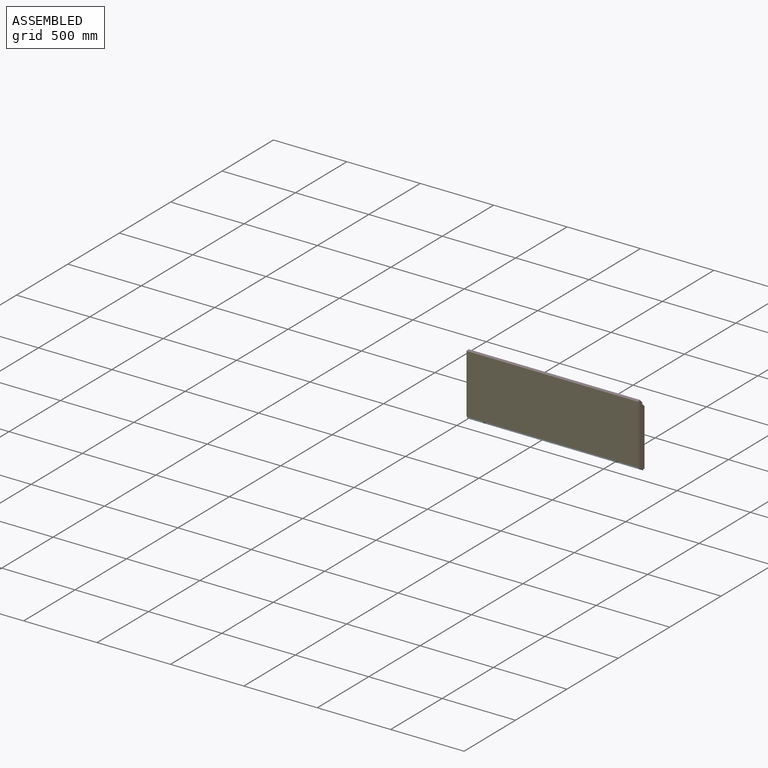
[diagram: assembled view]
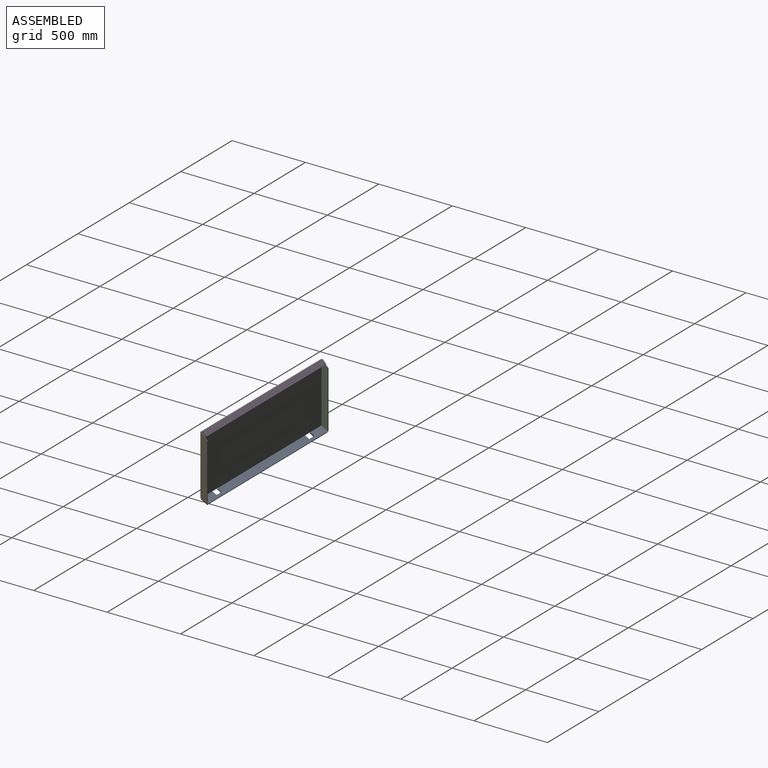
[diagram: assembled view, second angle]
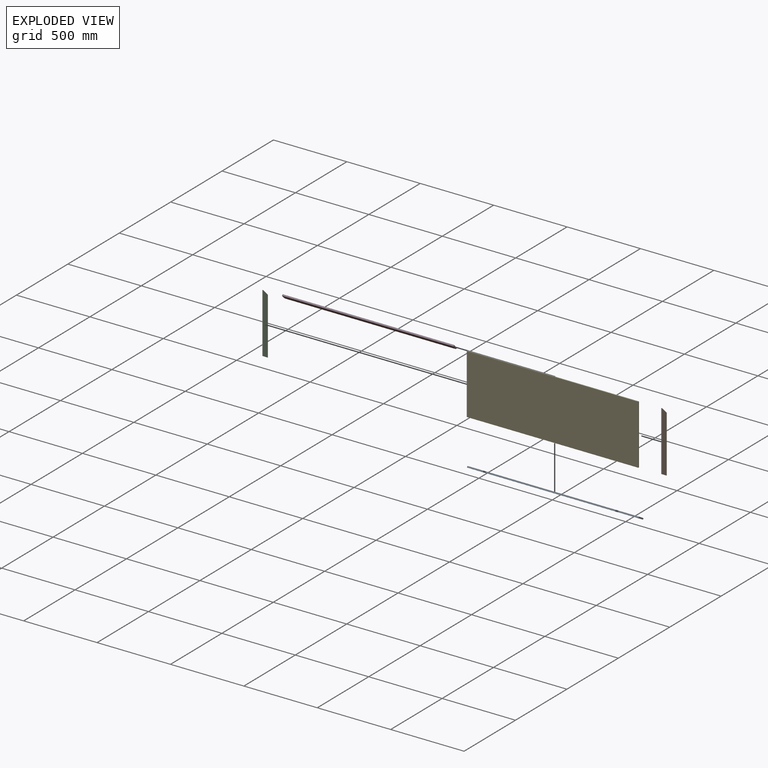
[diagram: exploded view]
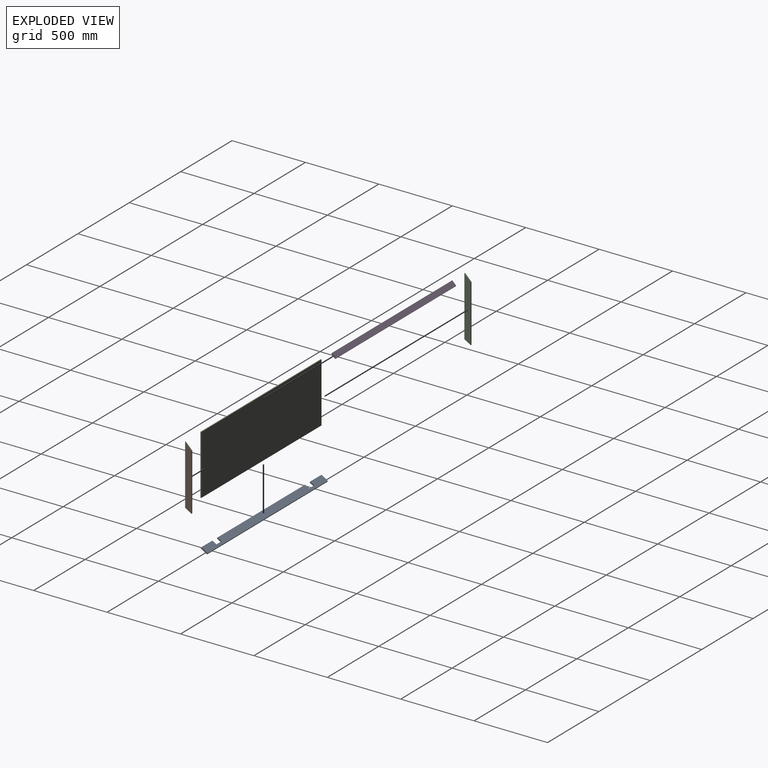
[diagram: exploded view, second angle]
ASSEMBLY  parts=5 mates=4
PART A: 14 faces, bbox 1168.4x48.8x33.6 mm
  f0: plane 850.9x8.25mm, normal (0,-0.87,0.5), area 8104.8mm2, adj f2,f3,f9,f13
  f1: plane 107.92x8.25mm, normal (0,-0.87,0.5), area 1027.9mm2, adj f2,f3,f7,f8
  f2: plane 1168.4x43.99mm, normal (0,0.5,0.87), area 56128.4mm2, adj f0,f1,f4,f5,f6,f7,f8,f9
  f3: plane 1168.4x43.99mm, normal (0,-0.5,-0.87), area 56128.4mm2, adj f0,f1,f4,f5,f6,f7,f8,f9
  f4: plane 107.95x8.25mm, normal (0,-0.87,0.5), area 1028.2mm2, adj f2,f3,f6,f11
  f5: plane 1168.4x8.25mm, normal (0,0.87,-0.5), area 11129mm2, adj f2,f3,f6,f7
  f6: plane 48.76x33.65mm, normal (1,0,0), area 483.9mm2, adj f2,f3,f4,f5
  f7: plane 48.76x33.65mm, normal (-1,0,0), area 483.9mm2, adj f1,f2,f3,f5
  f8: plane 32.26x24.12mm, normal (1,0,0), area 302.4mm2, adj f1,f2,f3,f10
  f9: plane 32.26x24.12mm, normal (-1,0,0), area 302.4mm2, adj f0,f2,f3,f10
  f10: plane 50.8x8.25mm, normal (0,-0.87,0.5), area 483.9mm2, adj f2,f3,f8,f9
  f11: plane 32.26x24.12mm, normal (-1,0,0), area 302.4mm2, adj f2,f3,f4,f12
  f12: plane 50.8x8.25mm, normal (0,-0.87,0.5), area 483.9mm2, adj f2,f3,f11,f13
  f13: plane 32.26x24.12mm, normal (1,0,0), area 302.4mm2, adj f0,f2,f3,f12
PART B: 6 faces, bbox 6.4x44x431.8 mm
  f0: plane 43.99x43.99mm, normal (0,0.71,0.71), area 395.1mm2, adj f1,f3,f4,f5
  f1: plane 406.4x6.35mm, normal (0,-1,0), area 2580.6mm2, adj f0,f2,f4,f5
  f2: plane 43.99x25.4mm, normal (0,-0.5,-0.87), area 322.6mm2, adj f1,f3,f4,f5
  f3: plane 387.81x6.35mm, normal (0,1,0), area 2462.6mm2, adj f0,f2,f4,f5
  f4: plane 431.8x43.99mm, normal (1,0,0), area 17470.2mm2, adj f0,f1,f2,f3
  f5: plane 431.8x43.99mm, normal (-1,0,0), area 17470.2mm2, adj f0,f1,f2,f3
PART C: same geometry as B
PART D: 6 faces, bbox 1168.4x33.7x33.7 mm
  f0: plane 1168.4x26.94mm, normal (0,-0.71,-0.71), area 44516mm2, adj f1,f3,f4,f5
  f1: plane 1168.4x6.74mm, normal (0,0.71,-0.71), area 11129mm2, adj f0,f2,f4,f5
  f2: plane 1168.4x26.94mm, normal (0,0.71,0.71), area 44516mm2, adj f1,f3,f4,f5
  f3: plane 1168.4x6.74mm, normal (0,-0.71,0.71), area 11129mm2, adj f0,f2,f4,f5
  f4: plane 33.68x33.68mm, normal (1,0,0), area 362.9mm2, adj f0,f1,f2,f3
  f5: plane 33.68x33.68mm, normal (-1,0,0), area 362.9mm2, adj f0,f1,f2,f3
PART E: 6 faces, bbox 1168.4x6.4x406.4 mm
  f0: plane 1168.4x6.35mm, normal (0,0,1), area 7419.3mm2, adj f1,f3,f4,f5
  f1: plane 406.4x6.35mm, normal (-1,0,0), area 2580.6mm2, adj f0,f2,f4,f5
  f2: plane 1168.4x6.35mm, normal (0,0,-1), area 7419.3mm2, adj f1,f3,f4,f5
  f3: plane 406.4x6.35mm, normal (1,0,0), area 2580.6mm2, adj f0,f2,f4,f5
  f4: plane 1168.4x406.4mm, normal (0,-1,0), area 474837.8mm2, adj f0,f1,f2,f3
  f5: plane 1168.4x406.4mm, normal (0,1,0), area 474837.8mm2, adj f0,f1,f2,f3
PLACE A t=(3.93,3.68,-205.84)mm
PLACE B t=(591.3,3.68,200.56)mm
PLACE C t=(-583.45,3.68,200.56)mm
PLACE D t=(3.93,30.62,173.62)mm
PLACE E t=(3.93,3.68,200.56)mm
MATE fastened B.f5 <-> D.f4  axis (-1,0,0) through (588.13,3.68,200.56)mm
MATE fastened A.f6 <-> E.f3  axis (1,0,0) through (588.13,3.68,-205.84)mm
MATE fastened C.f4 <-> D.f5  axis (1,0,0) through (-580.27,3.68,200.56)mm
MATE fastened D.f4 <-> E.f3  axis (1,0,0) through (588.13,3.68,200.56)mm
